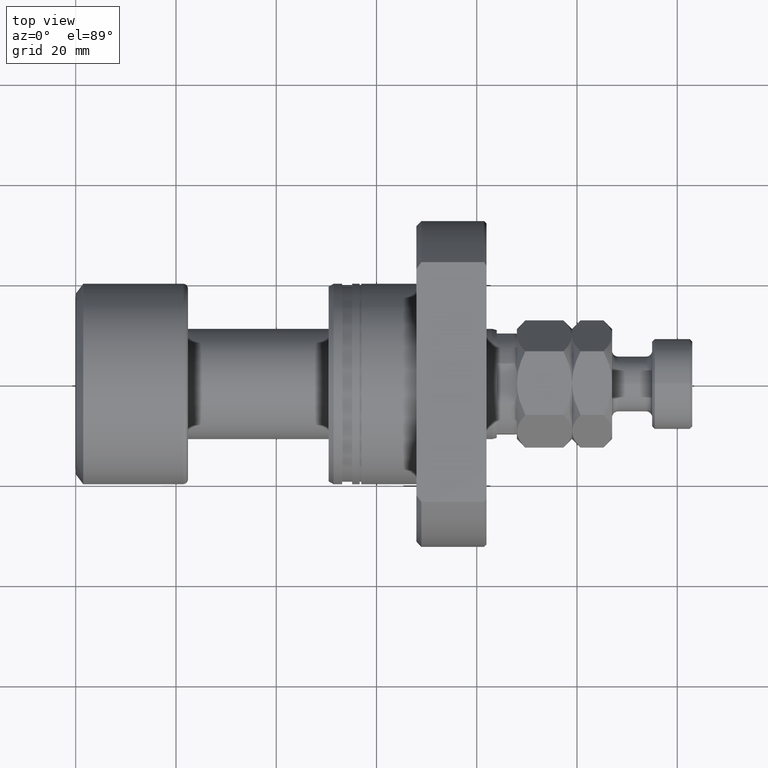
[diagram: clean part render]
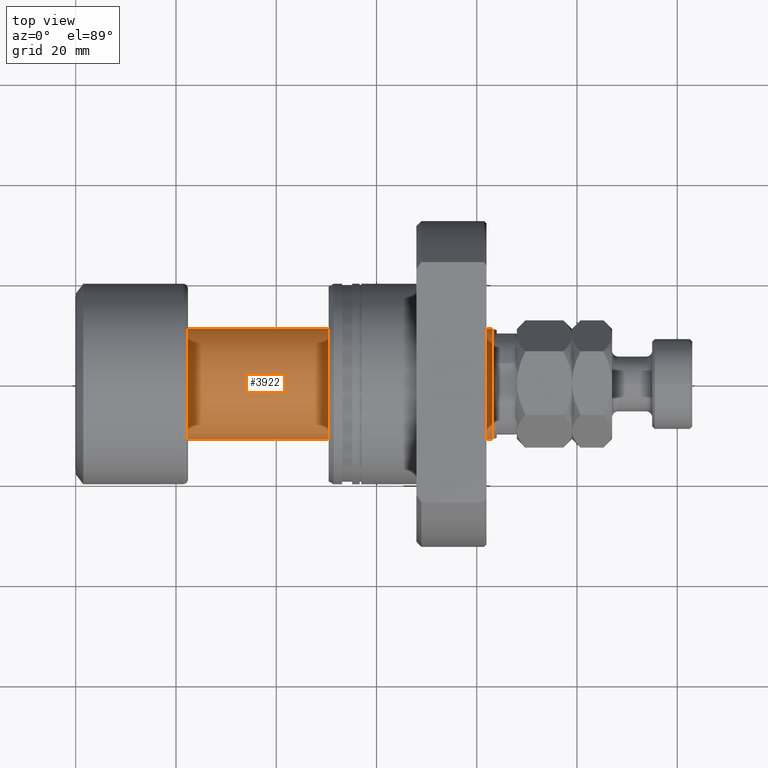
[diagram: same view with one face highlighted and labeled with its STEP entity id]
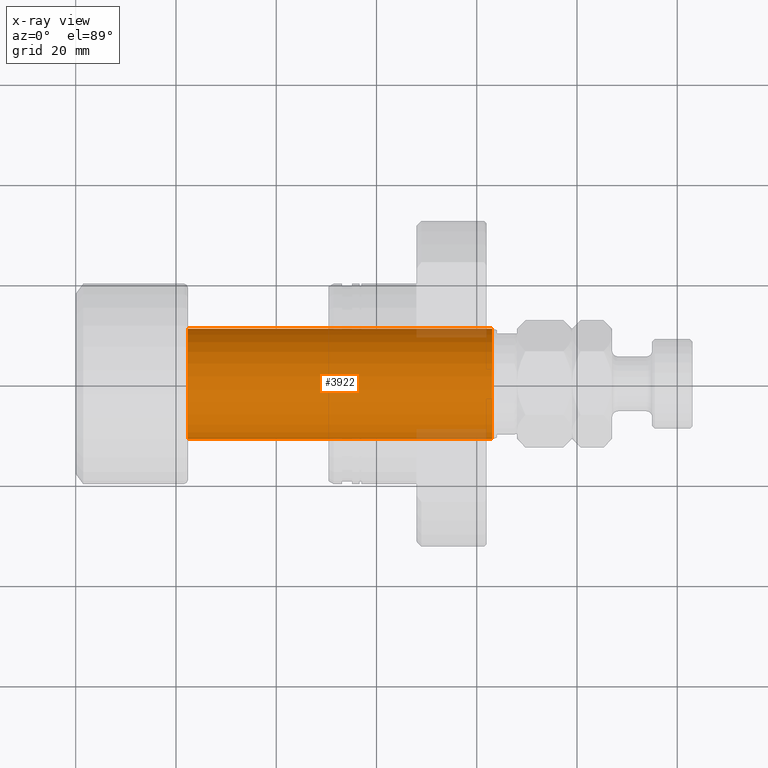
[diagram: x-ray of the same camera — body ghosted, the highlighted face saturated]
A machine part, top view. The second image highlights one B-rep face of the part: STEP entity #3922.
The next image is the same camera in x-ray: the body ghosted, the highlighted face saturated — about 4% of this face is hidden behind the body in this view.
In plain terms, the highlighted cylindrical surface (partial cylindrical patch) has radius 11 mm, axis along (-1, -0, -0).
Its self-contained STEP definition (entity closure, byte-faithful):
#158 = CARTESIAN_POINT ( 'NONE',  ( 22.39999999999999858, 2.395774801434707739E-16, 0.000000000000000000 ) ) ;
#219 = AXIS2_PLACEMENT_3D ( 'NONE', #158, #2457, #4725 ) ;
#299 = CIRCLE ( 'NONE', #219, 11.00000000000000000 ) ;
#556 = DIRECTION ( 'NONE',  ( -1.000000000000000000, -1.069542322069065801E-17, -0.000000000000000000 ) ) ;
#752 = AXIS2_PLACEMENT_3D ( 'NONE', #2754, #877, #3876 ) ;
#790 = CARTESIAN_POINT ( 'NONE',  ( 1.176496554275982688E-16, -11.00000000000009415, 0.000000000000000000 ) ) ;
#877 = DIRECTION ( 'NONE',  ( -1.000000000000000000, -1.069542322069065801E-17, -0.000000000000000000 ) ) ;
#938 = CARTESIAN_POINT ( 'NONE',  ( 22.39999999999999858, 11.00000000000000000, 1.347111479062094124E-15 ) ) ;
#1046 = FACE_OUTER_BOUND ( 'NONE', #3107, .T. ) ;
#1368 = EDGE_CURVE ( 'NONE', #4785, #2419, #2879, .T. ) ;
#1564 = EDGE_CURVE ( 'NONE', #4785, #4845, #4168, .T. ) ;
#1719 = CARTESIAN_POINT ( 'NONE',  ( 83.06675751232377536, -11.00000000000018829, 0.000000000000000000 ) ) ;
#1811 = CARTESIAN_POINT ( 'NONE',  ( 22.39999999999999858, -11.00000000000000000, 0.000000000000000000 ) ) ;
#2096 = LINE ( 'NONE', #4339, #2670 ) ;
#2097 = VECTOR ( 'NONE', #2300, 1000.000000000000000 ) ;
#2193 = AXIS2_PLACEMENT_3D ( 'NONE', #2600, #4467, #2551 ) ;
#2300 = DIRECTION ( 'NONE',  ( -1.000000000000000000, -1.069542322069065801E-17, -0.000000000000000000 ) ) ;
#2419 = VERTEX_POINT ( 'NONE', #2926 ) ;
#2457 = DIRECTION ( 'NONE',  ( -1.000000000000000000, -1.069542322069065801E-17, -0.000000000000000000 ) ) ;
#2551 = DIRECTION ( 'NONE',  ( 1.069542322069065955E-17, -1.000000000000000000, 0.000000000000000000 ) ) ;
#2600 = CARTESIAN_POINT ( 'NONE',  ( 0.000000000000000000, 0.000000000000000000, 0.000000000000000000 ) ) ;
#2670 = VECTOR ( 'NONE', #556, 1000.000000000000000 ) ;
#2754 = CARTESIAN_POINT ( 'NONE',  ( 83.06675751232377536, 8.884341271647877269E-16, 0.000000000000000000 ) ) ;
#2841 = EDGE_CURVE ( 'NONE', #2419, #2957, #2096, .T. ) ;
#2879 = CIRCLE ( 'NONE', #752, 11.00000000000019007 ) ;
#2926 = CARTESIAN_POINT ( 'NONE',  ( 83.06675751232377536, 11.00000000000019185, 1.347111479062111873E-15 ) ) ;
#2957 = VERTEX_POINT ( 'NONE', #938 ) ;
#3107 = EDGE_LOOP ( 'NONE', ( #4607, #3214, #3136, #3202 ) ) ;
#3136 = ORIENTED_EDGE ( 'NONE', *, *, #3750, .F. ) ;
#3202 = ORIENTED_EDGE ( 'NONE', *, *, #1564, .F. ) ;
#3214 = ORIENTED_EDGE ( 'NONE', *, *, #2841, .T. ) ;
#3750 = EDGE_CURVE ( 'NONE', #4845, #2957, #299, .T. ) ;
#3876 = DIRECTION ( 'NONE',  ( 0.000000000000000000, -1.000000000000000000, 0.000000000000000000 ) ) ;
#3922 = ADVANCED_FACE ( 'NONE', ( #1046 ), #4100, .T. ) ;
#4100 = CYLINDRICAL_SURFACE ( 'NONE', #2193, 11.00000000000009415 ) ;
#4168 = LINE ( 'NONE', #790, #2097 ) ;
#4339 = CARTESIAN_POINT ( 'NONE',  ( -1.176496554275982688E-16, 11.00000000000009415, 1.347111479062100238E-15 ) ) ;
#4467 = DIRECTION ( 'NONE',  ( -1.000000000000000000, -1.069542322069065801E-17, -0.000000000000000000 ) ) ;
#4607 = ORIENTED_EDGE ( 'NONE', *, *, #1368, .T. ) ;
#4725 = DIRECTION ( 'NONE',  ( 0.000000000000000000, -1.000000000000000000, 0.000000000000000000 ) ) ;
#4785 = VERTEX_POINT ( 'NONE', #1719 ) ;
#4845 = VERTEX_POINT ( 'NONE', #1811 ) ;